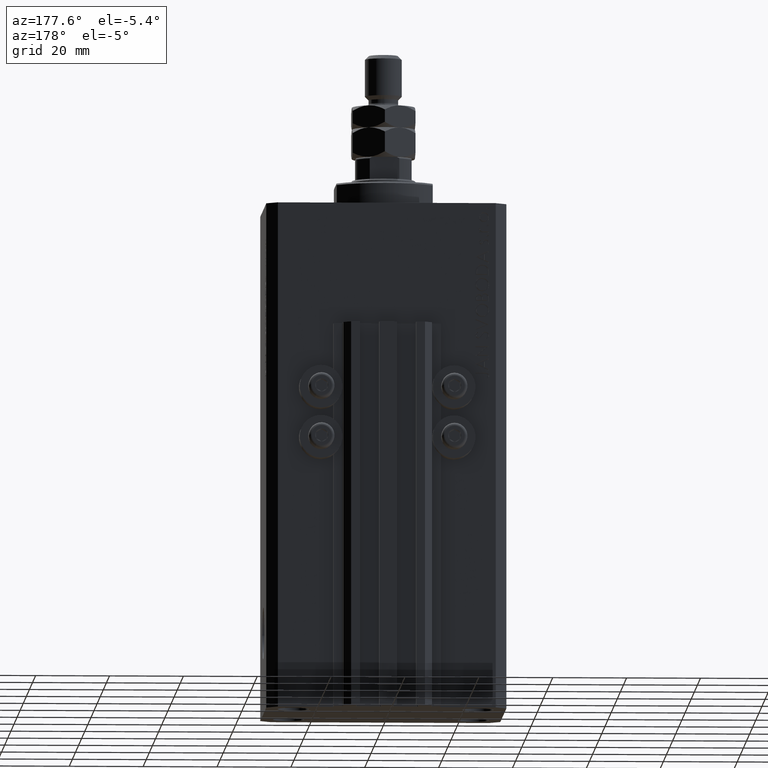
[diagram: clean part render]
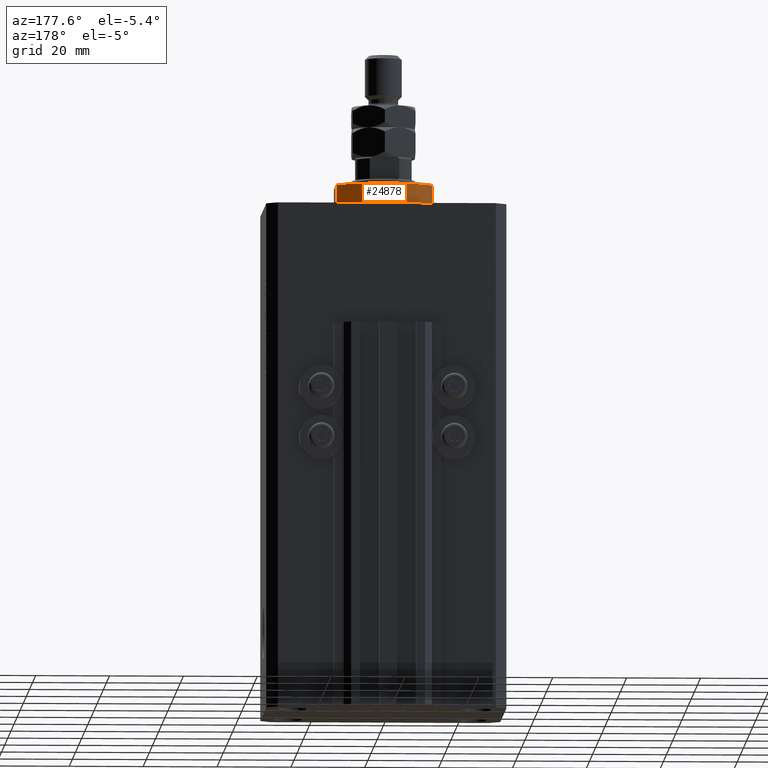
[diagram: same view with one face highlighted and labeled with its STEP entity id]
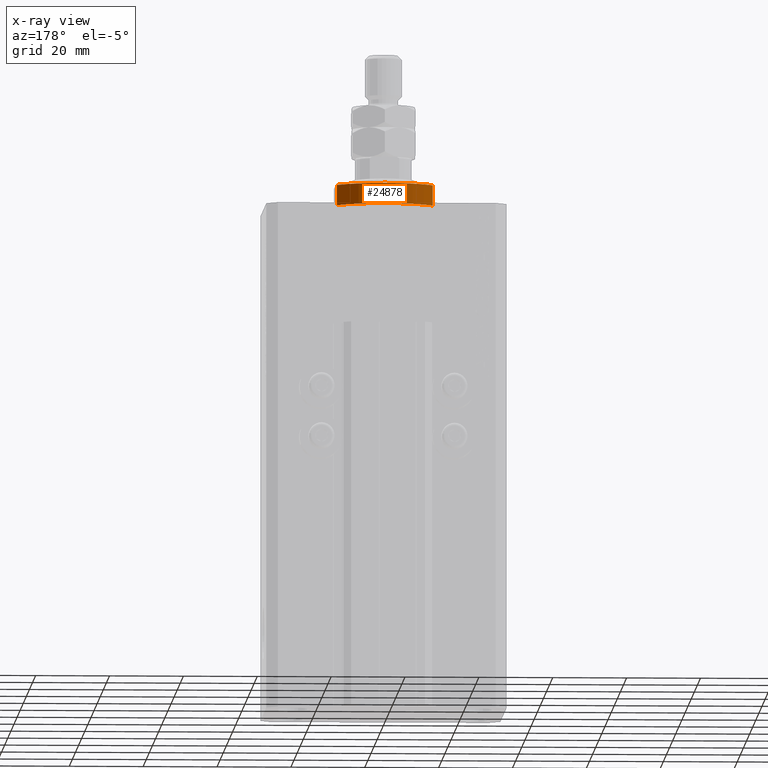
[diagram: x-ray of the same camera — body ghosted, the highlighted face saturated]
A machine part, auxiliary view. The second image highlights one B-rep face of the part: STEP entity #24878.
The next image is the same camera in x-ray: the body ghosted, the highlighted face saturated — about 0% of this face is hidden behind the body in this view.
In plain terms, the highlighted cylindrical surface (partial cylindrical patch) has radius 16 mm, axis along (0, 0, -1).
Its self-contained STEP definition (entity closure, byte-faithful):
#2686 = VERTEX_POINT ( 'NONE', #14388 ) ;
#2898 = CYLINDRICAL_SURFACE ( 'NONE', #34294, 16.00000000000000000 ) ;
#2928 = EDGE_CURVE ( 'NONE', #12482, #2686, #29128, .T. ) ;
#4290 = CARTESIAN_POINT ( 'NONE',  ( -13.00000000000000000, 9.327379053088815652, -0.4999999999999995559 ) ) ;
#5708 = CARTESIAN_POINT ( 'NONE',  ( 0.000000000000000000, 0.000000000000000000, -0.4999999999999995559 ) ) ;
#6578 = ORIENTED_EDGE ( 'NONE', *, *, #2928, .T. ) ;
#7578 = DIRECTION ( 'NONE',  ( 1.000000000000000000, 0.000000000000000000, 0.000000000000000000 ) ) ;
#9857 = EDGE_CURVE ( 'NONE', #33492, #38860, #32584, .T. ) ;
#12130 = LINE ( 'NONE', #19277, #30284 ) ;
#12482 = VERTEX_POINT ( 'NONE', #13175 ) ;
#13175 = CARTESIAN_POINT ( 'NONE',  ( 13.00000000000000000, 9.327379053088916905, -6.000000000000021316 ) ) ;
#14240 = CARTESIAN_POINT ( 'NONE',  ( 0.000000000000000000, 0.000000000000000000, -6.500000000000000000 ) ) ;
#14388 = CARTESIAN_POINT ( 'NONE',  ( -13.00000000000000000, 9.327379053088916905, -6.000000000000021316 ) ) ;
#14971 = FACE_OUTER_BOUND ( 'NONE', #35701, .T. ) ;
#15208 = DIRECTION ( 'NONE',  ( -0.000000000000000000, -0.000000000000000000, 1.000000000000000000 ) ) ;
#16631 = EDGE_CURVE ( 'NONE', #2686, #33492, #12130, .T. ) ;
#19277 = CARTESIAN_POINT ( 'NONE',  ( -13.00000000000000000, 9.327379053088813876, -6.500000000000000000 ) ) ;
#23773 = DIRECTION ( 'NONE',  ( -0.000000000000000000, -0.000000000000000000, 1.000000000000000000 ) ) ;
#23955 = CARTESIAN_POINT ( 'NONE',  ( 13.00000000000000000, 9.327379053088815652, -0.4999999999999995559 ) ) ;
#24878 = ADVANCED_FACE ( 'NONE', ( #14971 ), #2898, .T. ) ;
#26190 = ORIENTED_EDGE ( 'NONE', *, *, #16631, .T. ) ;
#28893 = VECTOR ( 'NONE', #23773, 1000.000000000000000 ) ;
#29128 = CIRCLE ( 'NONE', #47226, 16.00000000000000000 ) ;
#30284 = VECTOR ( 'NONE', #37791, 1000.000000000000000 ) ;
#31199 = LINE ( 'NONE', #39065, #28893 ) ;
#32103 = ORIENTED_EDGE ( 'NONE', *, *, #9857, .T. ) ;
#32584 = CIRCLE ( 'NONE', #36523, 16.00000000000000000 ) ;
#32595 = DIRECTION ( 'NONE',  ( -1.000000000000000000, 0.000000000000000000, 0.000000000000000000 ) ) ;
#33492 = VERTEX_POINT ( 'NONE', #4290 ) ;
#34294 = AXIS2_PLACEMENT_3D ( 'NONE', #14240, #15208, #7578 ) ;
#35701 = EDGE_LOOP ( 'NONE', ( #39356, #6578, #26190, #32103 ) ) ;
#35782 = DIRECTION ( 'NONE',  ( -0.000000000000000000, -0.000000000000000000, -1.000000000000000000 ) ) ;
#36523 = AXIS2_PLACEMENT_3D ( 'NONE', #5708, #35782, #39462 ) ;
#37791 = DIRECTION ( 'NONE',  ( -0.000000000000000000, -0.000000000000000000, 1.000000000000000000 ) ) ;
#38860 = VERTEX_POINT ( 'NONE', #23955 ) ;
#39065 = CARTESIAN_POINT ( 'NONE',  ( 13.00000000000000000, 9.327379053088813876, -6.500000000000000000 ) ) ;
#39356 = ORIENTED_EDGE ( 'NONE', *, *, #43560, .F. ) ;
#39462 = DIRECTION ( 'NONE',  ( 1.000000000000000000, -8.881784197001252323E-16, 0.000000000000000000 ) ) ;
#42958 = DIRECTION ( 'NONE',  ( 0.000000000000000000, 0.000000000000000000, 1.000000000000000000 ) ) ;
#43560 = EDGE_CURVE ( 'NONE', #12482, #38860, #31199, .T. ) ;
#47164 = CARTESIAN_POINT ( 'NONE',  ( 0.000000000000000000, 0.000000000000000000, -6.000000000000030198 ) ) ;
#47226 = AXIS2_PLACEMENT_3D ( 'NONE', #47164, #42958, #32595 ) ;